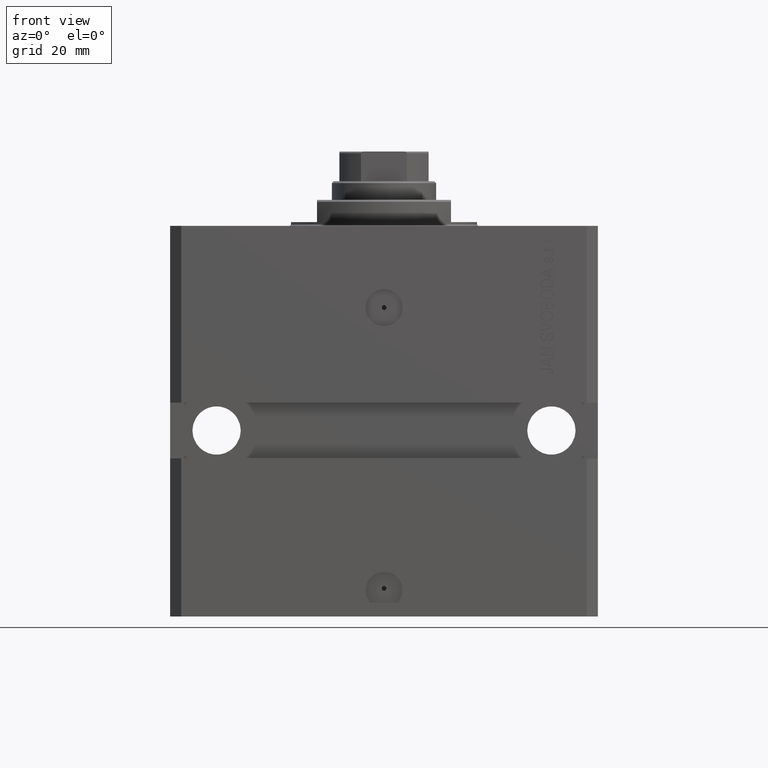
[diagram: clean part render]
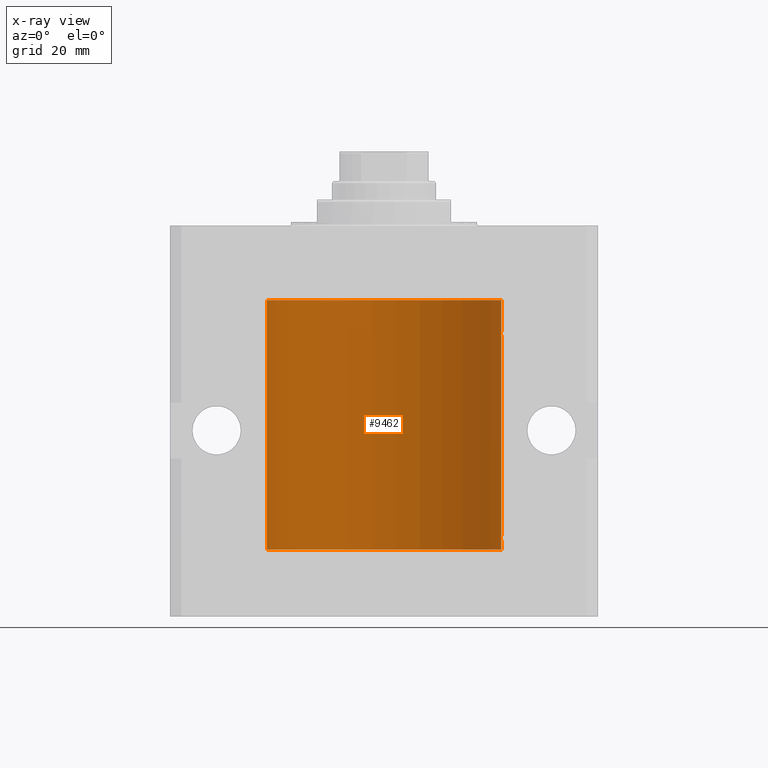
[diagram: x-ray — body ghosted, one internal face saturated and labeled with its STEP entity id]
A machine part, front view, then the same camera in x-ray: the body is ghosted and one INTERNAL B-rep face — a face not visible from any outside direction — is saturated and labeled: STEP entity #9462.
In plain terms, the highlighted cylindrical surface (partial cylindrical patch) has radius 31.5 mm, axis along (0, 0, 1).
Its self-contained STEP definition (entity closure, byte-faithful):
#142 = ORIENTED_EDGE ( 'NONE', *, *, #17149, .T. ) ;
#210 = CARTESIAN_POINT ( 'NONE',  ( 0.000000000000000000, 0.000000000000000000, -87.09999999999999432 ) ) ;
#422 = CARTESIAN_POINT ( 'NONE',  ( 31.49379899281745665, 0.6250000000082825968, -83.99999999999904787 ) ) ;
#803 = CARTESIAN_POINT ( 'NONE',  ( 31.49527883250257432, 0.5574151849338060405, -29.32638608454755058 ) ) ;
#1626 = CARTESIAN_POINT ( 'NONE',  ( 31.50000000000000000, 0.1631291455194407158, -83.37500000000014211 ) ) ;
#1759 = EDGE_CURVE ( 'NONE', #37108, #23520, #18164, .T. ) ;
#1860 = ORIENTED_EDGE ( 'NONE', *, *, #23727, .T. ) ;
#2288 = CARTESIAN_POINT ( 'NONE',  ( 31.49853627283156499, 0.3253078817183363558, -28.44140989403645747 ) ) ;
#2360 = ORIENTED_EDGE ( 'NONE', *, *, #29113, .F. ) ;
#2373 = LINE ( 'NONE', #35844, #23197 ) ;
#3814 = CIRCLE ( 'NONE', #9322, 31.50000000000000000 ) ;
#4105 = CARTESIAN_POINT ( 'NONE',  ( 31.49770674525946390, 0.3844410175904657834, -84.49948347834464357 ) ) ;
#4363 = DIRECTION ( 'NONE',  ( 0.000000000000000000, 0.000000000000000000, 1.000000000000000000 ) ) ;
#4450 = CYLINDRICAL_SURFACE ( 'NONE', #20216, 31.50000000000000000 ) ;
#4479 = CARTESIAN_POINT ( 'NONE',  ( 31.49770674525947101, 0.3844410175904570126, -29.49948347834465068 ) ) ;
#5381 = CARTESIAN_POINT ( 'NONE',  ( 31.49966575203784558, 0.1636755595825546972, -29.60873030821186802 ) ) ;
#5721 = CARTESIAN_POINT ( 'NONE',  ( 31.50000000000000000, 0.1631291455194386619, -28.37500000000015277 ) ) ;
#5789 = EDGE_CURVE ( 'NONE', #42074, #42799, #37410, .T. ) ;
#6117 = CARTESIAN_POINT ( 'NONE',  ( 31.50000000000000000, -1.286676774952591455E-15, -29.62500000000000000 ) ) ;
#7643 = VECTOR ( 'NONE', #37654, 1000.000000000000000 ) ;
#9322 = AXIS2_PLACEMENT_3D ( 'NONE', #17289, #21464, #10128 ) ;
#9462 = ADVANCED_FACE ( 'NONE', ( #23180 ), #4450, .F. ) ;
#10128 = DIRECTION ( 'NONE',  ( 1.000000000000000000, 0.000000000000000000, 0.000000000000000000 ) ) ;
#10414 = ORIENTED_EDGE ( 'NONE', *, *, #27673, .T. ) ;
#11054 = VECTOR ( 'NONE', #26575, 1000.000000000000000 ) ;
#13118 = CARTESIAN_POINT ( 'NONE',  ( 31.49379899281745665, 0.6250000000082756024, -28.99999999999905853 ) ) ;
#15253 = LINE ( 'NONE', #41588, #11054 ) ;
#15428 = EDGE_LOOP ( 'NONE', ( #2360, #28090, #45171, #41118, #10414, #17398, #1860, #19303, #142, #46351 ) ) ;
#16479 = CARTESIAN_POINT ( 'NONE',  ( 31.49379899281760231, 0.6250000000003351763, -29.16310352862698352 ) ) ;
#16654 = CARTESIAN_POINT ( 'NONE',  ( 31.49379899281745665, 0.6250000000082825968, -83.99999999999904787 ) ) ;
#17149 = EDGE_CURVE ( 'NONE', #23520, #40273, #15253, .T. ) ;
#17289 = CARTESIAN_POINT ( 'NONE',  ( 0.000000000000000000, 0.000000000000000000, -20.00000000000000355 ) ) ;
#17324 = CARTESIAN_POINT ( 'NONE',  ( 31.50000000000006395, 3.442404531757459093E-13, -28.37499999999677058 ) ) ;
#17398 = ORIENTED_EDGE ( 'NONE', *, *, #5789, .T. ) ;
#18164 = B_SPLINE_CURVE_WITH_KNOTS ( 'NONE', 3,
 ( #13118, #21006, #36267, #2288, #5721, #17324 ),
 .UNSPECIFIED., .F., .F.,
 ( 4, 2, 4 ),
 ( 0.0009772631991206452359, 0.001465673424414174614, 0.001954083649707703992 ),
 .UNSPECIFIED. ) ;
#19303 = ORIENTED_EDGE ( 'NONE', *, *, #1759, .T. ) ;
#19381 = CARTESIAN_POINT ( 'NONE',  ( 31.49851501686590893, 0.3150934959385818801, -84.54594721883857744 ) ) ;
#19487 = CARTESIAN_POINT ( 'NONE',  ( 0.000000000000000000, 0.000000000000000000, -87.09999999999999432 ) ) ;
#20087 = CARTESIAN_POINT ( 'NONE',  ( 31.49379899281760942, 0.6250000000003405054, -84.16310352862699062 ) ) ;
#20216 = AXIS2_PLACEMENT_3D ( 'NONE', #19487, #30817, #45814 ) ;
#20453 = B_SPLINE_CURVE_WITH_KNOTS ( 'NONE', 3,
 ( #16654, #35842, #32171, #28717, #1626, #31673 ),
 .UNSPECIFIED., .F., .F.,
 ( 4, 2, 4 ),
 ( 0.0009772631991206588969, 0.001465673424414194563, 0.001954083649707730446 ),
 .UNSPECIFIED. ) ;
#21006 = CARTESIAN_POINT ( 'NONE',  ( 31.49379899281762363, 0.6249999999996151967, -28.83697036533062885 ) ) ;
#21048 = DIRECTION ( 'NONE',  ( -0.000000000000000000, -0.000000000000000000, 1.000000000000000000 ) ) ;
#21097 = DIRECTION ( 'NONE',  ( -0.000000000000000000, -0.000000000000000000, 1.000000000000000000 ) ) ;
#21161 = CARTESIAN_POINT ( 'NONE',  ( 31.50000000000000711, 0.08261130139621915280, -29.62499999999999289 ) ) ;
#21464 = DIRECTION ( 'NONE',  ( 0.000000000000000000, 0.000000000000000000, 1.000000000000000000 ) ) ;
#21868 = VERTEX_POINT ( 'NONE', #27040 ) ;
#22641 = CARTESIAN_POINT ( 'NONE',  ( 31.50000000000000000, 0.000000000000000000, -87.09999999999999432 ) ) ;
#23180 = FACE_OUTER_BOUND ( 'NONE', #15428, .T. ) ;
#23197 = VECTOR ( 'NONE', #21097, 1000.000000000000000 ) ;
#23520 = VERTEX_POINT ( 'NONE', #31125 ) ;
#23561 = CARTESIAN_POINT ( 'NONE',  ( 31.50000000000000000, 0.08261130139621999935, -84.62499999999995737 ) ) ;
#23727 = EDGE_CURVE ( 'NONE', #42799, #37108, #28189, .T. ) ;
#26575 = DIRECTION ( 'NONE',  ( -0.000000000000000000, -0.000000000000000000, 1.000000000000000000 ) ) ;
#26766 = EDGE_CURVE ( 'NONE', #38612, #21868, #33976, .T. ) ;
#26850 = AXIS2_PLACEMENT_3D ( 'NONE', #210, #4363, #38822 ) ;
#27007 = CARTESIAN_POINT ( 'NONE',  ( 31.50000000000000000, -2.492939093807799249E-15, -84.62499999999998579 ) ) ;
#27040 = CARTESIAN_POINT ( 'NONE',  ( 31.49379899281745665, 0.6250000000082825968, -83.99999999999904787 ) ) ;
#27673 = EDGE_CURVE ( 'NONE', #21868, #42074, #20453, .T. ) ;
#28090 = ORIENTED_EDGE ( 'NONE', *, *, #47247, .F. ) ;
#28189 = B_SPLINE_CURVE_WITH_KNOTS ( 'NONE', 3,
 ( #6117, #21161, #5381, #38217, #4479, #803, #16479, #31500 ),
 .UNSPECIFIED., .F., .F.,
 ( 4, 2, 2, 4 ),
 ( 1.824539386392990385E-18, 0.0002443157997801608753, 0.0004886315995603199075, 0.0009772631991206452359 ),
 .UNSPECIFIED. ) ;
#28717 = CARTESIAN_POINT ( 'NONE',  ( 31.49853627283156499, 0.3253078817183396310, -83.44140989403643971 ) ) ;
#29113 = EDGE_CURVE ( 'NONE', #44034, #32791, #2373, .T. ) ;
#29697 = CARTESIAN_POINT ( 'NONE',  ( 31.49379899281745665, 0.6250000000082756024, -28.99999999999905853 ) ) ;
#30475 = EDGE_CURVE ( 'NONE', #33719, #38612, #39501, .T. ) ;
#30817 = DIRECTION ( 'NONE',  ( -0.000000000000000000, -0.000000000000000000, 1.000000000000000000 ) ) ;
#31125 = CARTESIAN_POINT ( 'NONE',  ( 31.50000000000006395, 3.442404531757459093E-13, -28.37499999999677058 ) ) ;
#31267 = CARTESIAN_POINT ( 'NONE',  ( 31.50000000000000000, -1.286676774952591455E-15, -29.62500000000000000 ) ) ;
#31500 = CARTESIAN_POINT ( 'NONE',  ( 31.49379899281745665, 0.6250000000082756024, -28.99999999999905853 ) ) ;
#31673 = CARTESIAN_POINT ( 'NONE',  ( 31.50000000000006395, 3.442404755096224483E-13, -83.37499999999675993 ) ) ;
#31874 = CARTESIAN_POINT ( 'NONE',  ( 31.50000000000000000, 0.000000000000000000, -87.09999999999999432 ) ) ;
#32171 = CARTESIAN_POINT ( 'NONE',  ( 31.49526225382467359, 0.5586305680866429091, -83.67476160622149450 ) ) ;
#32678 = VECTOR ( 'NONE', #21048, 1000.000000000000000 ) ;
#32791 = VERTEX_POINT ( 'NONE', #38438 ) ;
#33719 = VERTEX_POINT ( 'NONE', #37880 ) ;
#33976 = B_SPLINE_CURVE_WITH_KNOTS ( 'NONE', 3,
 ( #27007, #23561, #34142, #19381, #4105, #41786, #20087, #422 ),
 .UNSPECIFIED., .F., .F.,
 ( 4, 2, 2, 4 ),
 ( 2.422664849601941982E-18, 0.0002443157997801665674, 0.0004886315995603306411, 0.0009772631991206588969 ),
 .UNSPECIFIED. ) ;
#34142 = CARTESIAN_POINT ( 'NONE',  ( 31.49966575203785268, 0.1636755595825563903, -84.60873030821188934 ) ) ;
#35842 = CARTESIAN_POINT ( 'NONE',  ( 31.49379899281762363, 0.6249999999996236344, -83.83697036533064306 ) ) ;
#35844 = CARTESIAN_POINT ( 'NONE',  ( -31.50000000000000000, 3.857637417314162689E-15, -87.09999999999999432 ) ) ;
#36267 = CARTESIAN_POINT ( 'NONE',  ( 31.49526225382467359, 0.5586305680866376910, -28.67476160622149806 ) ) ;
#37108 = VERTEX_POINT ( 'NONE', #29697 ) ;
#37410 = LINE ( 'NONE', #22641, #7643 ) ;
#37654 = DIRECTION ( 'NONE',  ( -0.000000000000000000, -0.000000000000000000, 1.000000000000000000 ) ) ;
#37880 = CARTESIAN_POINT ( 'NONE',  ( 31.50000000000000000, 0.000000000000000000, -87.09999999999999432 ) ) ;
#38217 = CARTESIAN_POINT ( 'NONE',  ( 31.49851501686590893, 0.3150934959385772727, -29.54594721883858099 ) ) ;
#38438 = CARTESIAN_POINT ( 'NONE',  ( -31.50000000000000000, 3.857637417314162689E-15, -20.00000000000000355 ) ) ;
#38612 = VERTEX_POINT ( 'NONE', #45570 ) ;
#38822 = DIRECTION ( 'NONE',  ( 1.000000000000000000, 0.000000000000000000, 0.000000000000000000 ) ) ;
#39419 = CIRCLE ( 'NONE', #26850, 31.50000000000000000 ) ;
#39501 = LINE ( 'NONE', #31874, #32678 ) ;
#40273 = VERTEX_POINT ( 'NONE', #45937 ) ;
#41118 = ORIENTED_EDGE ( 'NONE', *, *, #26766, .T. ) ;
#41588 = CARTESIAN_POINT ( 'NONE',  ( 31.50000000000000000, 0.000000000000000000, -87.09999999999999432 ) ) ;
#41668 = EDGE_CURVE ( 'NONE', #40273, #32791, #3814, .T. ) ;
#41786 = CARTESIAN_POINT ( 'NONE',  ( 31.49527883250257432, 0.5574151849338155884, -84.32638608454756479 ) ) ;
#42074 = VERTEX_POINT ( 'NONE', #44289 ) ;
#42799 = VERTEX_POINT ( 'NONE', #31267 ) ;
#44034 = VERTEX_POINT ( 'NONE', #47995 ) ;
#44289 = CARTESIAN_POINT ( 'NONE',  ( 31.50000000000006395, 3.442404755096224483E-13, -83.37499999999675993 ) ) ;
#45171 = ORIENTED_EDGE ( 'NONE', *, *, #30475, .T. ) ;
#45570 = CARTESIAN_POINT ( 'NONE',  ( 31.50000000000000000, -2.492939093807799249E-15, -84.62499999999998579 ) ) ;
#45814 = DIRECTION ( 'NONE',  ( 1.000000000000000000, 0.000000000000000000, 0.000000000000000000 ) ) ;
#45937 = CARTESIAN_POINT ( 'NONE',  ( 31.50000000000000000, 0.000000000000000000, -20.00000000000000355 ) ) ;
#46351 = ORIENTED_EDGE ( 'NONE', *, *, #41668, .T. ) ;
#47247 = EDGE_CURVE ( 'NONE', #33719, #44034, #39419, .T. ) ;
#47995 = CARTESIAN_POINT ( 'NONE',  ( -31.50000000000000000, 3.857637417314162689E-15, -87.09999999999999432 ) ) ;